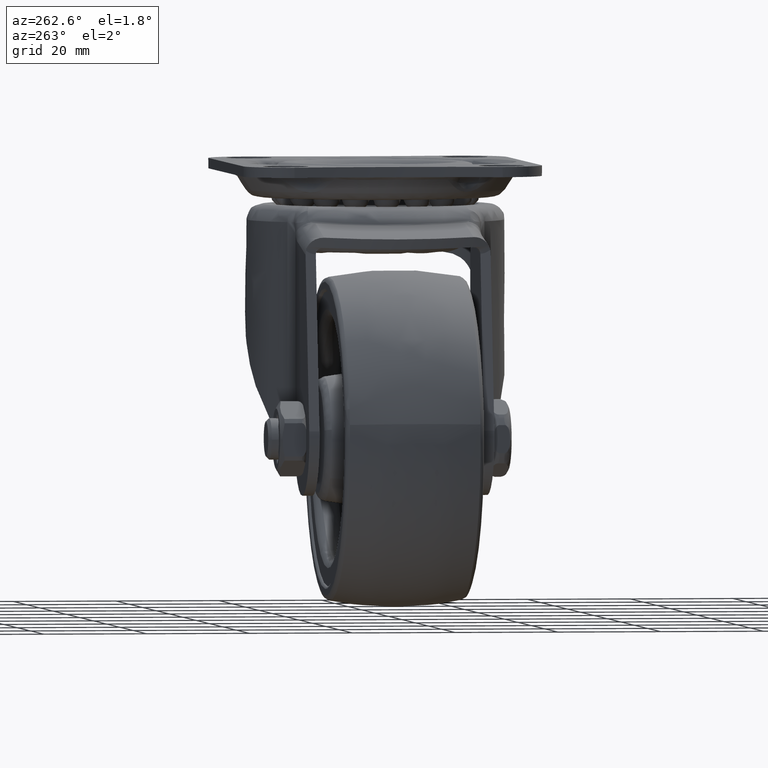
[diagram: clean part render]
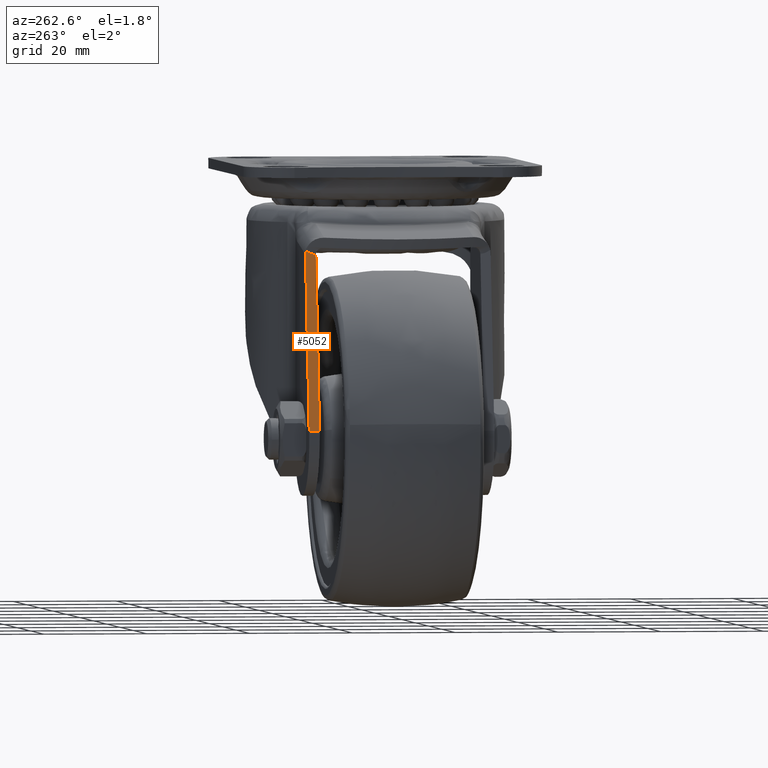
[diagram: same view with one face highlighted and labeled with its STEP entity id]
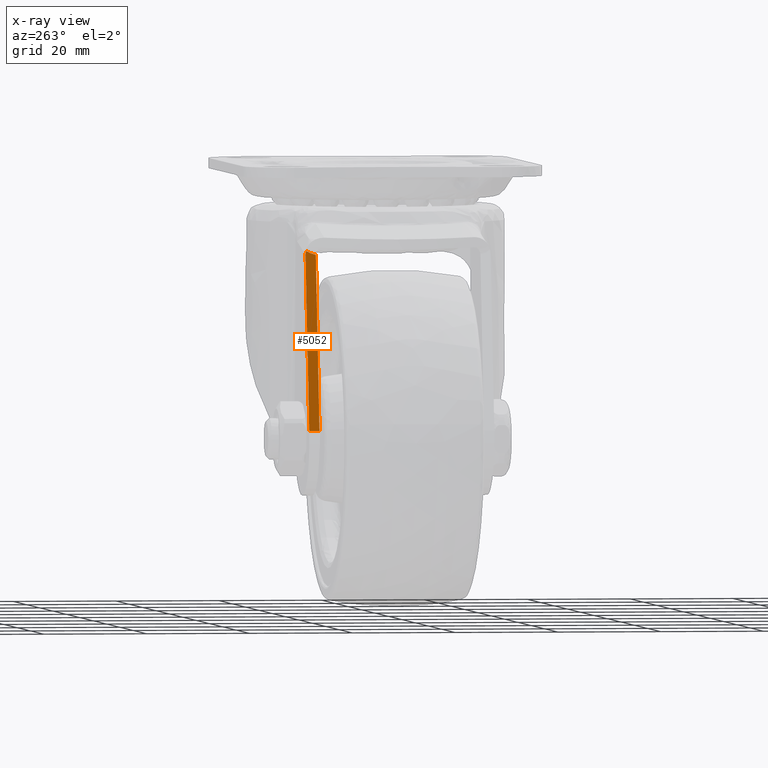
[diagram: x-ray of the same camera — body ghosted, the highlighted face saturated]
A machine part, auxiliary view. The second image highlights one B-rep face of the part: STEP entity #5052.
The next image is the same camera in x-ray: the body ghosted, the highlighted face saturated — about 0% of this face is hidden behind the body in this view.
In plain terms, the highlighted face is a freeform B-spline surface patch.
Its self-contained STEP definition (entity closure, byte-faithful):
#3393=CARTESIAN_POINT('',(-34.369345867787899,18.0,-16.856208753988650));
#3394=VERTEX_POINT('',#3393);
#3405=CARTESIAN_POINT('',(-34.248683200691246,17.926690782548050,-16.111345694796299));
#3406=VERTEX_POINT('',#3405);
#3407=CARTESIAN_POINT('',(-34.248683200691246,17.926690782548050,-16.111345694796249));
#3408=CARTESIAN_POINT('',(-34.288523592608954,17.975619085089530,-16.357284533355820));
#3409=CARTESIAN_POINT('',(-34.328745343727540,18.0,-16.605577541501081));
#3410=CARTESIAN_POINT('',(-34.369345867787899,18.0,-16.856208753988650));
#3411=QUASI_UNIFORM_CURVE('',3,(#3407,#3408,#3409,#3410),.UNSPECIFIED.,.F.,.U.);
#3412=EDGE_CURVE('',#3406,#3394,#3411,.T.);
#4246=CARTESIAN_POINT('',(-34.373342312664903,16.0,-16.880879219415849));
#4247=VERTEX_POINT('',#4246);
#4248=CARTESIAN_POINT('',(-34.373342312664903,16.0,-16.880879219415849));
#4249=CARTESIAN_POINT('',(-34.366262954856793,16.168376936422909,-16.837177615258138));
#4250=CARTESIAN_POINT('',(-34.358612166478117,16.335704671313970,-16.789948511392922));
#4251=CARTESIAN_POINT('',(-34.341877960089612,16.667729695192008,-16.686646533543261));
#4252=CARTESIAN_POINT('',(-34.332802462960650,16.832335141060462,-16.630622555971570));
#4253=CARTESIAN_POINT('',(-34.317817025404572,17.075778929298099,-16.538115908058518));
#4254=CARTESIAN_POINT('',(-34.312590234560211,17.156371917585179,-16.505850390382140));
#4255=CARTESIAN_POINT('',(-34.301584349389110,17.316234766415359,-16.437909928805059));
#4256=CARTESIAN_POINT('',(-34.295802789588187,17.395533688262208,-16.402219765278499));
#4257=CARTESIAN_POINT('',(-34.283620476974832,17.551765226822390,-16.327017096055709));
#4258=CARTESIAN_POINT('',(-34.277215458622152,17.628784715929839,-16.287478258740268));
#4259=CARTESIAN_POINT('',(-34.263610858110262,17.780048383915592,-16.203495659977950));
#4260=CARTESIAN_POINT('',(-34.256413986244667,17.854302029504389,-16.159068629452300));
#4261=CARTESIAN_POINT('',(-34.248683200691282,17.926690782548029,-16.111345694796299));
#4262=B_SPLINE_CURVE_WITH_KNOTS('',3,(#4248,#4249,#4250,#4251,#4252,#4253,#4254,#4255,#4256,#4257,#4258,#4259,#4260,#4261),.UNSPECIFIED.,.F.,.U.,(4,2,2,2,2,2,4),(0.0,0.249999999999999,0.499999999999998,0.624999999999999,0.749999999999999,0.875000000000000,1.0),.UNSPECIFIED.);
#4263=EDGE_CURVE('',#4247,#3406,#4262,.T.);
#5024=CARTESIAN_POINT('',(-40.138655776194049,15.900100003876391,-52.470752433542110));
#5025=CARTESIAN_POINT('',(-33.968475307691662,15.900100003876391,-14.381593540201621));
#5026=CARTESIAN_POINT('',(-40.138655776194049,18.099900049767790,-52.470752433542110));
#5027=CARTESIAN_POINT('',(-33.968475307691662,18.099900049767790,-14.381593540201621));
#5028=B_SPLINE_SURFACE_WITH_KNOTS('',1,1,((#5024,#5026),(#5025,#5027)),.UNSPECIFIED.,.F.,.F.,.U.,(2,2),(2,2),(0.0,38.585685846127276),(0.0,2.199800045891404),.UNSPECIFIED.);
#5029=ORIENTED_EDGE('',*,*,#4263,.T.);
#5030=ORIENTED_EDGE('',*,*,#3412,.T.);
#5031=CARTESIAN_POINT('',(-39.858448284436101,18.0,-50.741002755853508));
#5032=VERTEX_POINT('',#5031);
#5033=CARTESIAN_POINT('',(-39.858448284436101,18.0,-50.741002755853508));
#5034=CARTESIAN_POINT('',(-34.369345867787899,18.0,-16.856208753988650));
#5035=QUASI_UNIFORM_CURVE('',1,(#5033,#5034),.UNSPECIFIED.,.F.,.U.);
#5036=EDGE_CURVE('',#5032,#3394,#5035,.T.);
#5037=ORIENTED_EDGE('',*,*,#5036,.F.);
#5038=CARTESIAN_POINT('',(-39.858448284436101,16.0,-50.741002755853508));
#5039=VERTEX_POINT('',#5038);
#5040=CARTESIAN_POINT('',(-39.858448284436101,16.0,-50.741002755853508));
#5041=CARTESIAN_POINT('',(-39.858448284436101,18.0,-50.741002755853508));
#5042=QUASI_UNIFORM_CURVE('',1,(#5040,#5041),.UNSPECIFIED.,.F.,.U.);
#5043=EDGE_CURVE('',#5039,#5032,#5042,.T.);
#5044=ORIENTED_EDGE('',*,*,#5043,.F.);
#5045=CARTESIAN_POINT('',(-39.858448284436101,16.0,-50.741002755853508));
#5046=CARTESIAN_POINT('',(-34.373342312664903,16.0,-16.880879219415849));
#5047=QUASI_UNIFORM_CURVE('',1,(#5045,#5046),.UNSPECIFIED.,.F.,.U.);
#5048=EDGE_CURVE('',#5039,#4247,#5047,.T.);
#5049=ORIENTED_EDGE('',*,*,#5048,.T.);
#5050=EDGE_LOOP('',(#5029,#5030,#5037,#5044,#5049));
#5051=FACE_OUTER_BOUND('',#5050,.T.);
#5052=ADVANCED_FACE('',(#5051),#5028,.T.);